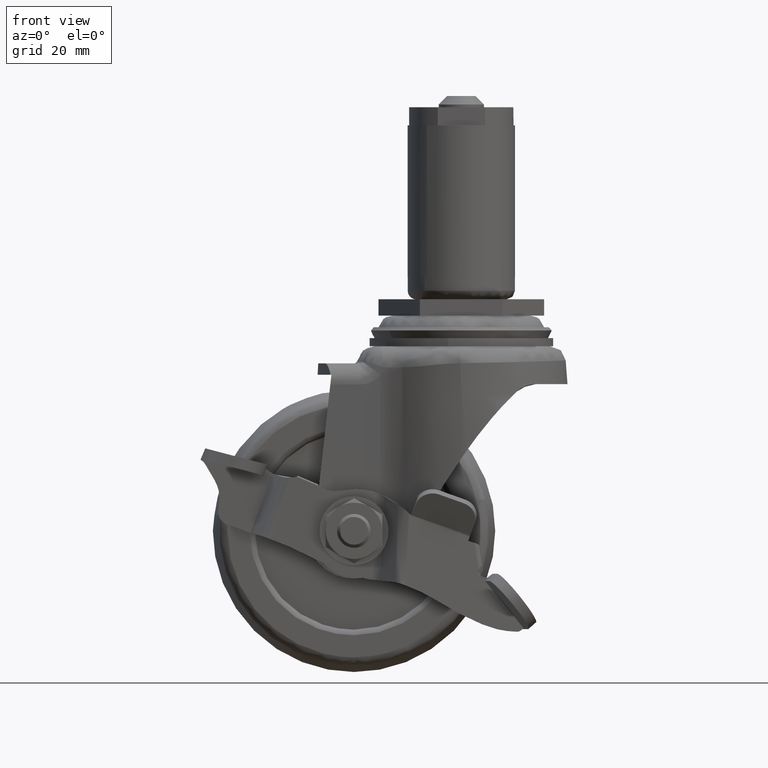
[diagram: clean part render]
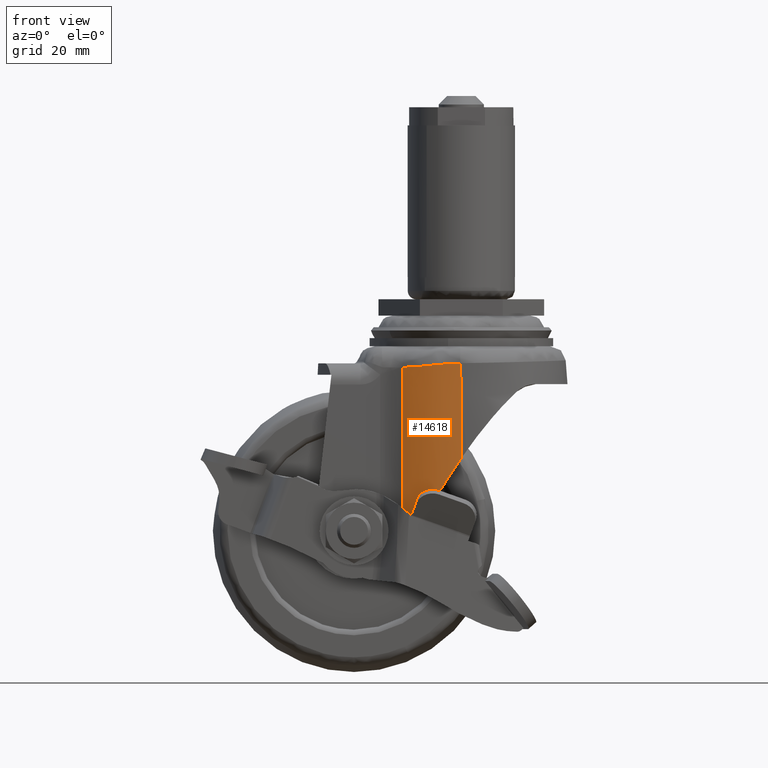
[diagram: same view with one face highlighted and labeled with its STEP entity id]
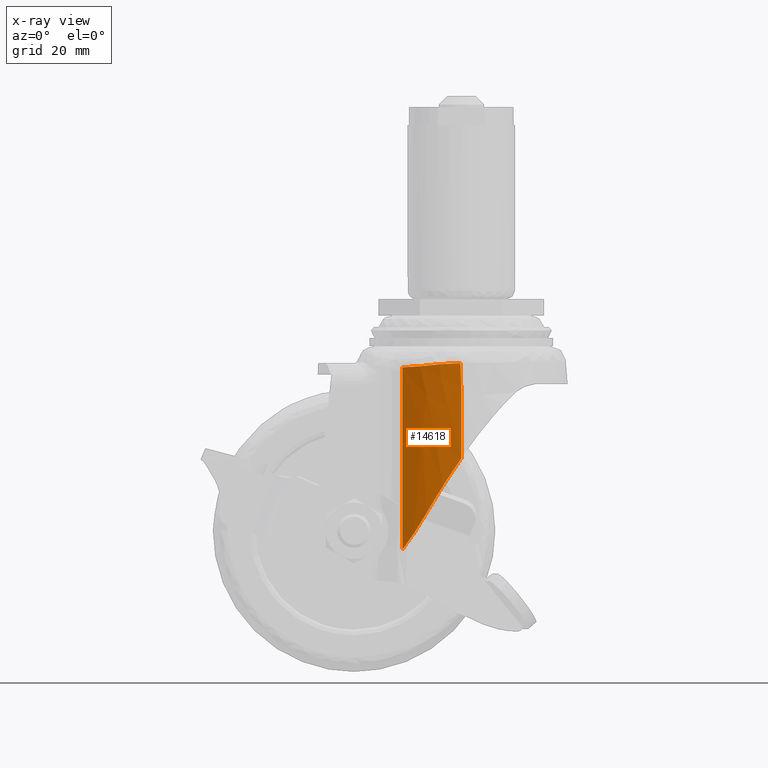
[diagram: x-ray of the same camera — body ghosted, the highlighted face saturated]
A machine part, front view. The second image highlights one B-rep face of the part: STEP entity #14618.
The next image is the same camera in x-ray: the body ghosted, the highlighted face saturated — about 0% of this face is hidden behind the body in this view.
In plain terms, the highlighted face is a freeform B-spline surface patch.
Its self-contained STEP definition (entity closure, byte-faithful):
#11279=CARTESIAN_POINT('',(-0.182389769335353,-18.849117659007849,-10.311114480009820));
#11280=VERTEX_POINT('',#11279);
#11466=CARTESIAN_POINT('',(-10.465135058398459,-15.678124719535800,-11.062300000000000));
#11467=VERTEX_POINT('',#11466);
#11480=CARTESIAN_POINT('',(-0.182389769335353,-18.849117659007849,-10.311114480009820));
#11481=CARTESIAN_POINT('',(-0.348100169288524,-18.846246994115649,-10.312083123256800));
#11482=CARTESIAN_POINT('',(-0.687651906391582,-18.840364808983860,-10.314067938315100));
#11483=CARTESIAN_POINT('',(-1.208505415445920,-18.813564030270999,-10.328991850013590));
#11484=CARTESIAN_POINT('',(-1.752575687250061,-18.771161671907912,-10.352498304947851));
#11485=CARTESIAN_POINT('',(-2.319229932209976,-18.709782151253609,-10.385627205157791));
#11486=CARTESIAN_POINT('',(-3.079059685756224,-18.603764950820700,-10.440185134944951));
#11487=CARTESIAN_POINT('',(-4.168193660943765,-18.400393555297210,-10.540288733840510));
#11488=CARTESIAN_POINT('',(-5.561342117924522,-18.034392253784311,-10.686703356631609));
#11489=CARTESIAN_POINT('',(-6.918735320681720,-17.552121837207888,-10.833089817916671));
#11490=CARTESIAN_POINT('',(-8.049856913622506,-17.055847099440118,-10.944763637300831));
#11491=CARTESIAN_POINT('',(-8.948434744029953,-16.598924322060590,-11.011975858877960));
#11492=CARTESIAN_POINT('',(-9.739476545350316,-16.148995440766111,-11.053846681285179));
#11493=CARTESIAN_POINT('',(-10.229575313288230,-15.830976488072171,-11.059555924700129));
#11494=CARTESIAN_POINT('',(-10.465135058398459,-15.678124719535800,-11.062300000000000));
#11495=B_SPLINE_CURVE_WITH_KNOTS('',3,(#11480,#11481,#11482,#11483,#11484,#11485,#11486,#11487,#11488,#11489,#11490,#11491,#11492,#11493,#11494),.UNSPECIFIED.,.F.,.U.,(4,1,1,1,1,1,1,1,1,1,1,1,4),(0.0,0.045439792641525,0.093109186444500,0.143021498337684,0.195188324170596,0.249619815510264,0.353870070712294,0.500009982099818,0.646119768825975,0.750400158362071,0.839838263047028,0.923020296313347,1.0),.UNSPECIFIED.);
#11496=EDGE_CURVE('',#11280,#11467,#11495,.T.);
#13530=CARTESIAN_POINT('',(-10.465135058397060,-15.678124719536751,-43.384241657274302));
#13531=VERTEX_POINT('',#13530);
#13532=CARTESIAN_POINT('',(-10.465135058398459,-15.678124719535800,-11.062300000000000));
#13533=CARTESIAN_POINT('',(-10.465135058397060,-15.678124719536751,-43.384241657274302));
#13534=QUASI_UNIFORM_CURVE('',1,(#13532,#13533),.UNSPECIFIED.,.F.,.U.);
#13535=EDGE_CURVE('',#11467,#13531,#13534,.T.);
#14393=CARTESIAN_POINT('',(-0.000006999999924,-18.850000000000001,-14.777769023008300));
#14394=VERTEX_POINT('',#14393);
#14395=CARTESIAN_POINT('',(-0.000006999999924,-18.850000000000001,-14.777769023008300));
#14396=CARTESIAN_POINT('',(-0.182389769335353,-18.849117659007849,-10.311114480009820));
#14397=QUASI_UNIFORM_CURVE('',1,(#14395,#14396),.UNSPECIFIED.,.F.,.U.);
#14398=EDGE_CURVE('',#14394,#11280,#14397,.T.);
#14559=CARTESIAN_POINT('',(-0.000006999999927,-18.850000000000001,-27.160310200695349));
#14560=VERTEX_POINT('',#14559);
#14561=CARTESIAN_POINT('',(-0.000006999999927,-18.850000000000001,-27.160310200695349));
#14562=CARTESIAN_POINT('',(-0.000006999999924,-18.850000000000001,-14.777769023008300));
#14563=QUASI_UNIFORM_CURVE('',1,(#14561,#14562),.UNSPECIFIED.,.F.,.U.);
#14564=EDGE_CURVE('',#14560,#14394,#14563,.T.);
#14575=CARTESIAN_POINT('',(0.542918170010456,-18.842179604806049,-44.211069836705910));
#14576=CARTESIAN_POINT('',(0.542918170010456,-18.842179604806049,-9.463615596092417));
#14577=CARTESIAN_POINT('',(-5.768215821030058,-19.024030832578539,-44.211069836705924));
#14578=CARTESIAN_POINT('',(-5.768215821030058,-19.024030832578539,-9.463615596092417));
#14579=CARTESIAN_POINT('',(-10.915640067216108,-15.367870859097431,-44.211069836705917));
#14580=CARTESIAN_POINT('',(-10.915640067216108,-15.367870859097431,-9.463615596092417));
#14588=(BOUNDED_SURFACE()B_SPLINE_SURFACE(1,2,((#14575,#14577,#14579),(#14576,#14578,#14580)),.UNSPECIFIED.,.F.,.F.,.U.)B_SPLINE_SURFACE_WITH_KNOTS((2,2),(3,3),(0.0,34.747454240613507),(0.0,12.291866134695530),.UNSPECIFIED.)GEOMETRIC_REPRESENTATION_ITEM()RATIONAL_B_SPLINE_SURFACE(((0.999612161126330,0.944206886009153,0.991931353035312),(0.999612161126330,0.944206886009153,0.991931353035312)))REPRESENTATION_ITEM('')SURFACE());
#14589=ORIENTED_EDGE('',*,*,#14398,.T.);
#14590=ORIENTED_EDGE('',*,*,#11496,.T.);
#14591=ORIENTED_EDGE('',*,*,#13535,.T.);
#14592=CARTESIAN_POINT('',(-6.217047098077460,-17.795249714991250,-36.966512076518200));
#14593=VERTEX_POINT('',#14592);
#14594=CARTESIAN_POINT('',(-10.465135058397090,-15.678124719536751,-43.384241657274274));
#14595=CARTESIAN_POINT('',(-10.371114776758869,-15.740883136441321,-43.259409596890393));
#14596=CARTESIAN_POINT('',(-10.277159210735251,-15.802373366714439,-43.133699561103690));
#14597=CARTESIAN_POINT('',(-10.090036859994990,-15.922504796924249,-42.881376356287859));
#14598=CARTESIAN_POINT('',(-9.810274283632314,-16.098603246886711,-42.501189998187243));
#14599=CARTESIAN_POINT('',(-9.533388704796451,-16.262892043182759,-42.115961677298003));
#14600=CARTESIAN_POINT('',(-8.983730735488040,-16.576890697434560,-41.338930810481507));
#14601=CARTESIAN_POINT('',(-8.622782816191750,-16.766816002994979,-40.812149217087082));
#14602=CARTESIAN_POINT('',(-7.558344317837843,-17.286340376382260,-39.206509357191159));
#14603=CARTESIAN_POINT('',(-6.873313550998736,-17.565973078342399,-38.102400471519317));
#14604=CARTESIAN_POINT('',(-6.217047098077460,-17.795249714991250,-36.966512076518200));
#14605=B_SPLINE_CURVE_WITH_KNOTS('',3,(#14594,#14595,#14596,#14597,#14598,#14599,#14600,#14601,#14602,#14603,#14604),.UNSPECIFIED.,.F.,.U.,(4,2,1,2,2,4),(0.0,0.062500000000000,0.125000000000000,0.250000000000000,0.499999999999999,1.0),.UNSPECIFIED.);
#14606=EDGE_CURVE('',#13531,#14593,#14605,.T.);
#14607=ORIENTED_EDGE('',*,*,#14606,.T.);
#14608=CARTESIAN_POINT('',(-0.000006999999927,-18.850000000000001,-27.160310200695349));
#14609=CARTESIAN_POINT('',(-2.216787740484499,-18.832876123574231,-30.359447063629180));
#14610=CARTESIAN_POINT('',(-4.301637964255532,-18.479037073513759,-33.648014266370893));
#14611=CARTESIAN_POINT('',(-6.217047098077460,-17.795249714991250,-36.966512076518200));
#14612=B_SPLINE_CURVE_WITH_KNOTS('',3,(#14608,#14609,#14610,#14611),.UNSPECIFIED.,.F.,.U.,(4,4),(9.216645E-010,11.676401443777960),.UNSPECIFIED.);
#14613=EDGE_CURVE('',#14560,#14593,#14612,.T.);
#14614=ORIENTED_EDGE('',*,*,#14613,.F.);
#14615=ORIENTED_EDGE('',*,*,#14564,.T.);
#14616=EDGE_LOOP('',(#14589,#14590,#14591,#14607,#14614,#14615));
#14617=FACE_OUTER_BOUND('',#14616,.T.);
#14618=ADVANCED_FACE('',(#14617),#14588,.T.);